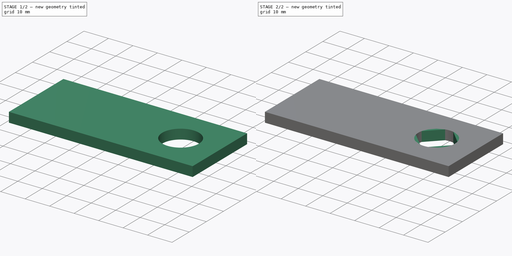
[diagram: build sequence overview — one tinted view per stage of 2, left to right]
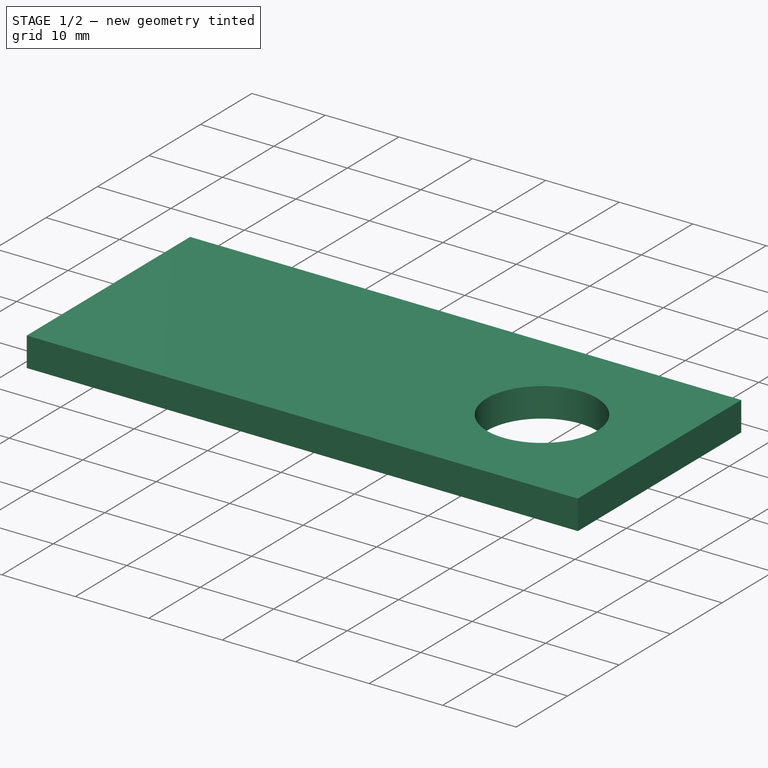
[diagram: stage 1 of 2 — iso view after this stage's code; geometry added in this stage tinted green]
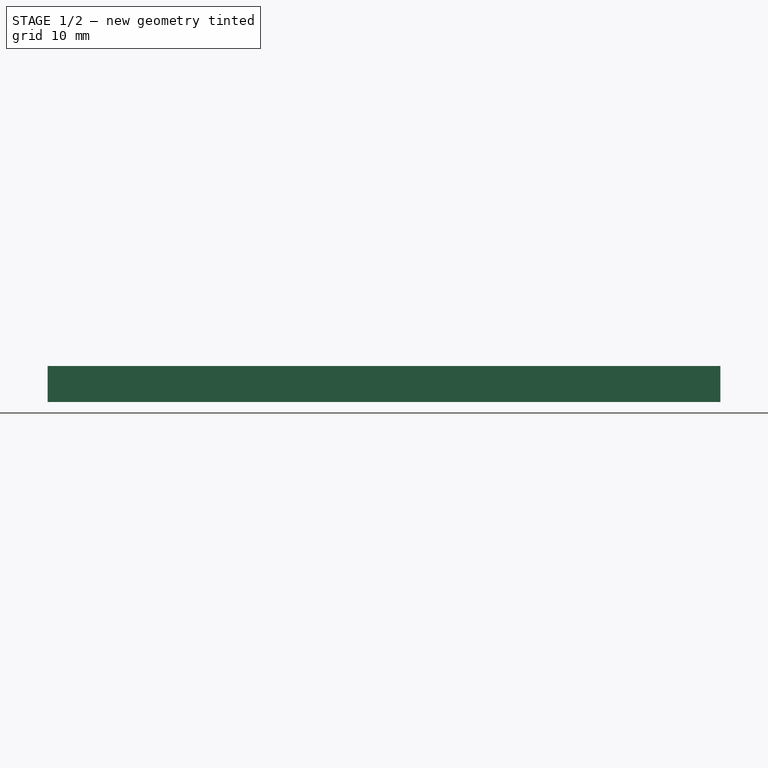
[diagram: stage 1 of 2 — front view after this stage's code; geometry added in this stage tinted green]
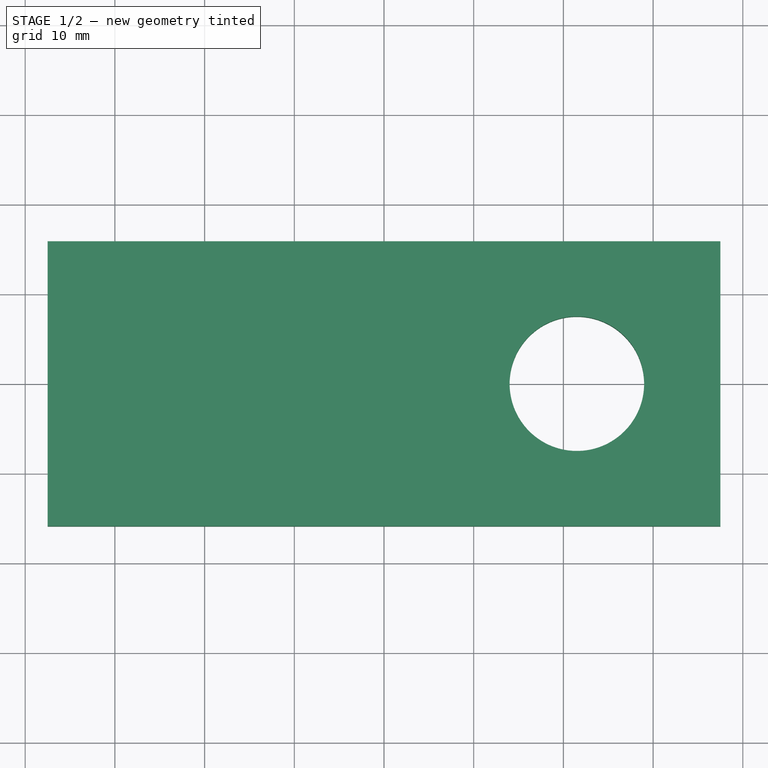
[diagram: stage 1 of 2 — top view after this stage's code; geometry added in this stage tinted green]
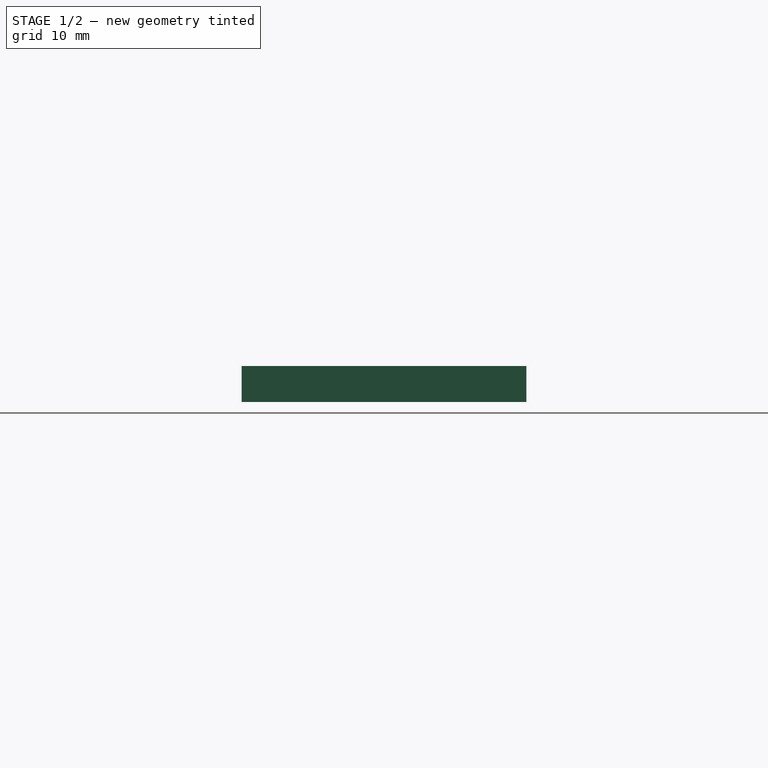
[diagram: stage 1 of 2 — right view after this stage's code; geometry added in this stage tinted green]
FCSTD DOCUMENT  (FreeCAD 0.16R)
Label: Wobble_crank
License: All rights reserved
LicenseURL: http://en.wikipedia.org/wiki/All_rights_reserved
objects: Sketcher::SketchObject×3, PartDesign::Pad×2, PartDesign::Pocket×1
note: 9 computed .brp shape members not serialized (recipe doc carries the construction recipe); baked Part::Feature solids carry a one-line shape summary decoded from their .brp

FEATURE [Sketcher::SketchObject] Sketch
  sketch-geometry (4):
    g0: LineSegment StartX=-37.5 StartY=15.875 StartZ=0 EndX=37.5 EndY=15.875 EndZ=0
    g1: LineSegment StartX=37.5 StartY=15.875 StartZ=0 EndX=37.5 EndY=-15.875 EndZ=0
    g2: LineSegment StartX=37.5 StartY=-15.875 StartZ=0 EndX=-37.5 EndY=-15.875 EndZ=0
    g3: LineSegment StartX=-37.5 StartY=-15.875 StartZ=0 EndX=-37.5 EndY=15.875 EndZ=0
  constraints (11):
    c: Coincident(g0,g1)
    c: Coincident(g1,g2)
    c: Coincident(g2,g3)
    c: Coincident(g3,g0)
    c: Horizontal(g0)
    c: Horizontal(g2)
    c: Vertical(g1)
    c: Vertical(g3)
    c: Distance(g1) = 31.75
    c: Distance(g0) = 75
    c: Symmetric(g0,g2,g-1)
FEATURE [PartDesign::Pad] Pad
  Length = 4
  Length2 = 100
  Sketch = -> Sketch
  Type = 0
FEATURE [Sketcher::SketchObject] Sketch001
  ExternalGeometry = -> [Pad]
  Placement = pos=(0,0,4) rot=(0,0,1;0rad)
  Support = -> Pad [Face6]
  sketch-geometry (1):
    g0: Circle CenterX=21.5 CenterY=0 CenterZ=0 NormalX=0 NormalY=0 NormalZ=1 Radius=7.5
  constraints (3):
    c: PointOnObject(g0,g-1)
    c: Radius(g0) = 7.5
    c: Distance(g0,g-3) = 16
FEATURE [PartDesign::Pocket] Pocket
  Length = 5
  Sketch = -> Sketch001
  Type = 1
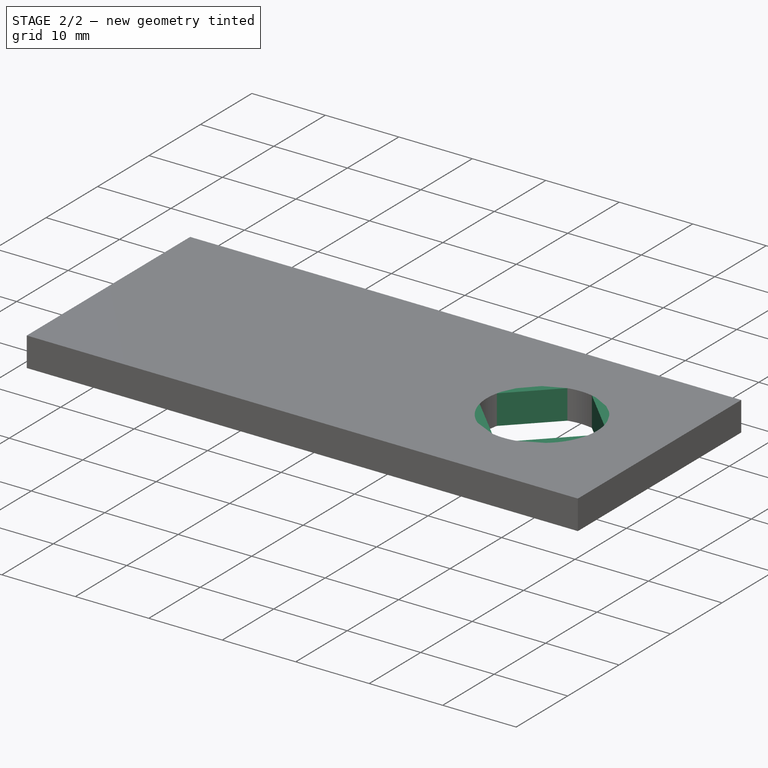
[diagram: stage 2 of 2 — iso view after this stage's code; geometry added in this stage tinted green]
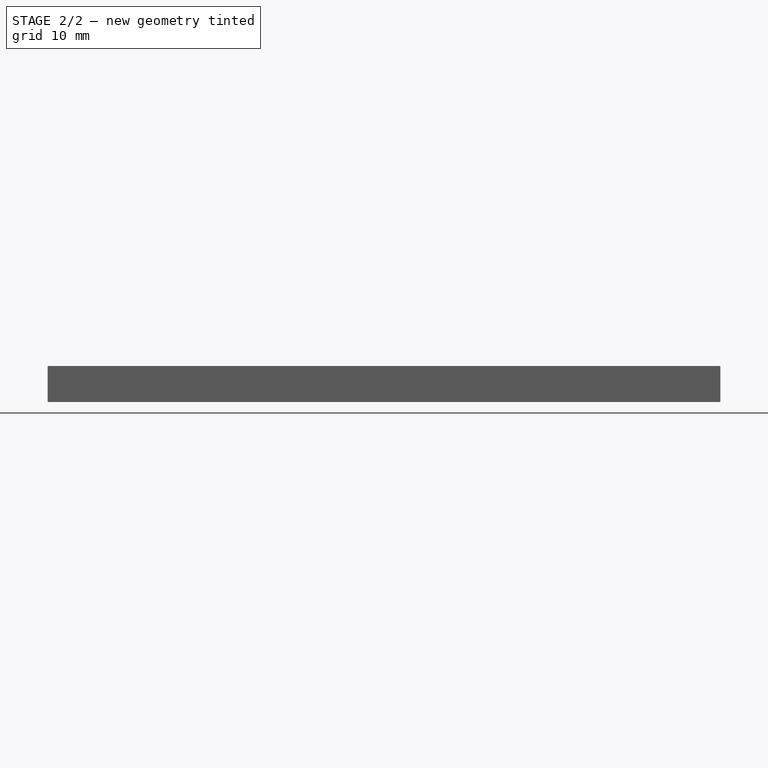
[diagram: stage 2 of 2 — front view after this stage's code; geometry added in this stage tinted green]
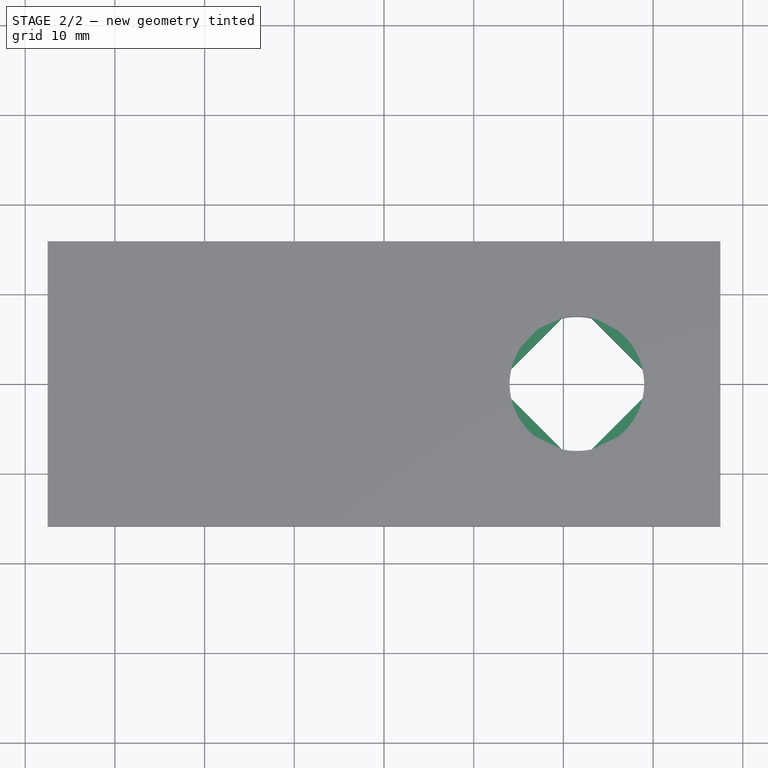
[diagram: stage 2 of 2 — top view after this stage's code; geometry added in this stage tinted green]
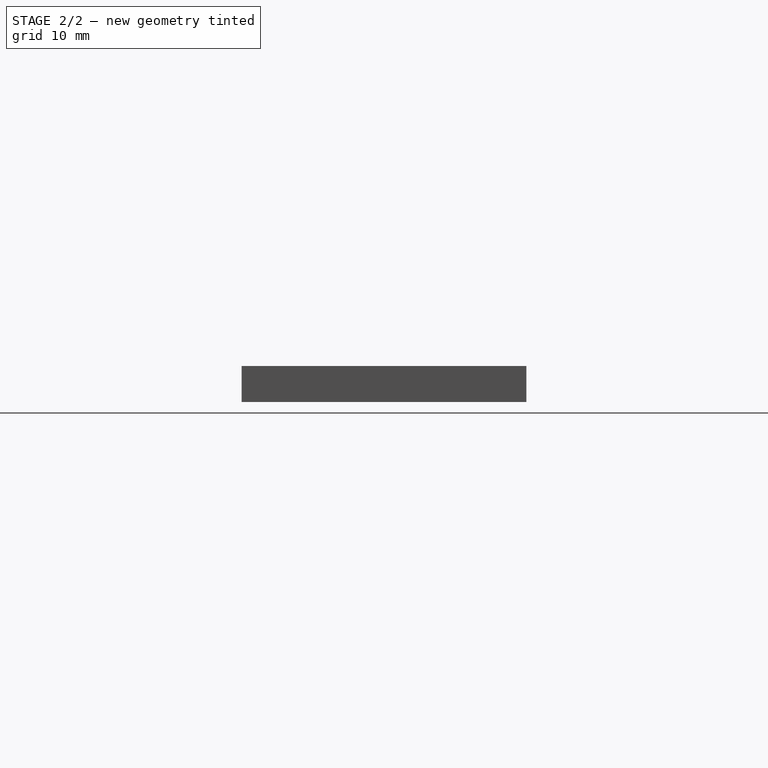
[diagram: stage 2 of 2 — right view after this stage's code; geometry added in this stage tinted green]
FEATURE [Sketcher::SketchObject] Sketch002
  ExternalGeometry = -> [Pocket]
  Placement = pos=(0,0,4) rot=(0,0,1;0rad)
  Support = -> Pocket [Face5]
  sketch-geometry (12):
    g0: LineSegment StartX=24.4865 StartY=11.9668 StartZ=0 EndX=10.3444 EndY=-2.17534 EndZ=0
    g1: LineSegment StartX=10.3444 StartY=-2.17534 StartZ=0 EndX=10.3444 EndY=11.9668 EndZ=0
    g2: LineSegment StartX=10.3444 StartY=11.9668 StartZ=0 EndX=24.4865 EndY=11.9668 EndZ=0
    g3: LineSegment StartX=29.8156 StartY=0.664607 StartZ=0 EndX=21.7079 EndY=8.77239 EndZ=0
    g4: LineSegment StartX=21.7079 StartY=8.77239 StartZ=0 EndX=34.4698 EndY=11.7383 EndZ=0
    g5: LineSegment StartX=34.4698 StartY=11.7383 StartZ=0 EndX=29.8156 EndY=0.664607 EndZ=0
    g6: LineSegment StartX=30.9579 StartY=0.4776 StartZ=0 EndX=22.4028 EndY=-8.07746 EndZ=0
    g7: LineSegment StartX=22.4028 StartY=-8.07746 StartZ=0 EndX=35.7794 EndY=-11.6279 EndZ=0
    g8: LineSegment StartX=35.7794 StartY=-11.6279 StartZ=0 EndX=30.9579 EndY=0.4776 EndZ=0
    g9: LineSegment StartX=13.2538 StartY=-0.734019 StartZ=0 EndX=21.279 EndY=-8.7593 EndZ=0
    g10: LineSegment StartX=21.279 StartY=-8.7593 StartZ=0 EndX=7.24554 EndY=-12.5069 EndZ=0
    g11: LineSegment StartX=7.24554 StartY=-12.5069 StartZ=0 EndX=13.2538 EndY=-0.734019 EndZ=0
  constraints (24):
    c: Coincident(g0,g1)
    c: Coincident(g1,g2)
    c: Coincident(g2,g0)
    c: Horizontal(g2)
    c: Angle(g0) = -2.35619
    c: Distance(g-3,g0) = 6.35
    c: Distance(g0) = 20
    c: DistanceX(g0) = 10.3444
    c: Vertical(g1)
    c: Coincident(g3,g4)
    c: Coincident(g4,g5)
    c: Coincident(g5,g3)
    c: Coincident(g6,g7)
    c: Coincident(g7,g8)
    c: Coincident(g6,g8)
    c: Coincident(g9,g10)
    c: Coincident(g10,g11)
    c: Coincident(g11,g9)
    c: Angle(g3) = 2.35619
    c: Angle(g6) = -2.35619
    c: Angle(g9) = -0.785398
    c: Distance(g-3,g6) = 6.35
    c: Distance(g-3,g3) = 6.35
    c: Distance(g-3,g9) = 6.35
FEATURE [PartDesign::Pad] Pad001
  Length = 4
  Length2 = 100
  Reversed = true
  Sketch = -> Sketch002
  Type = 0
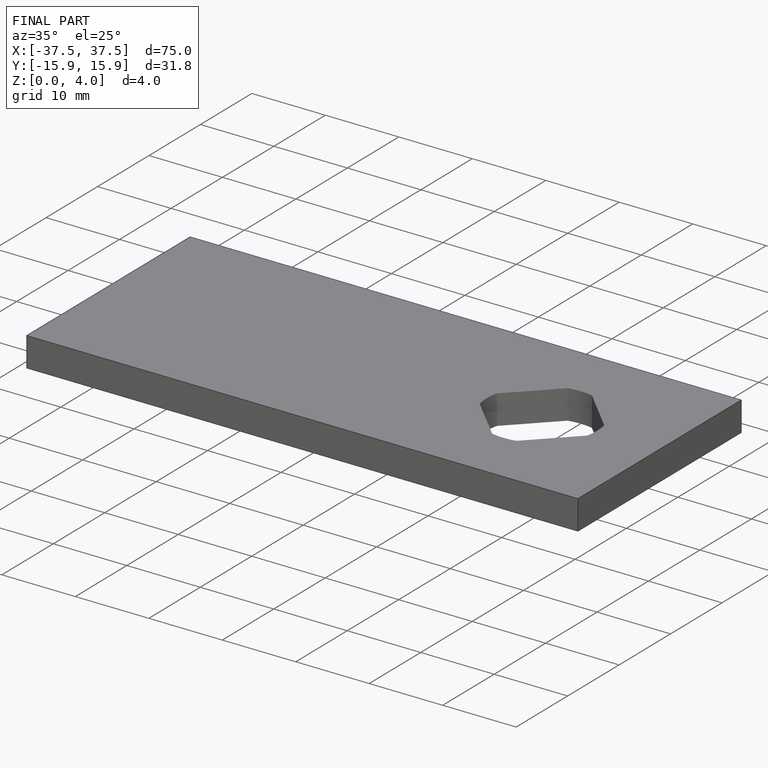
[diagram: finished part — iso view with bounding-box wireframe]
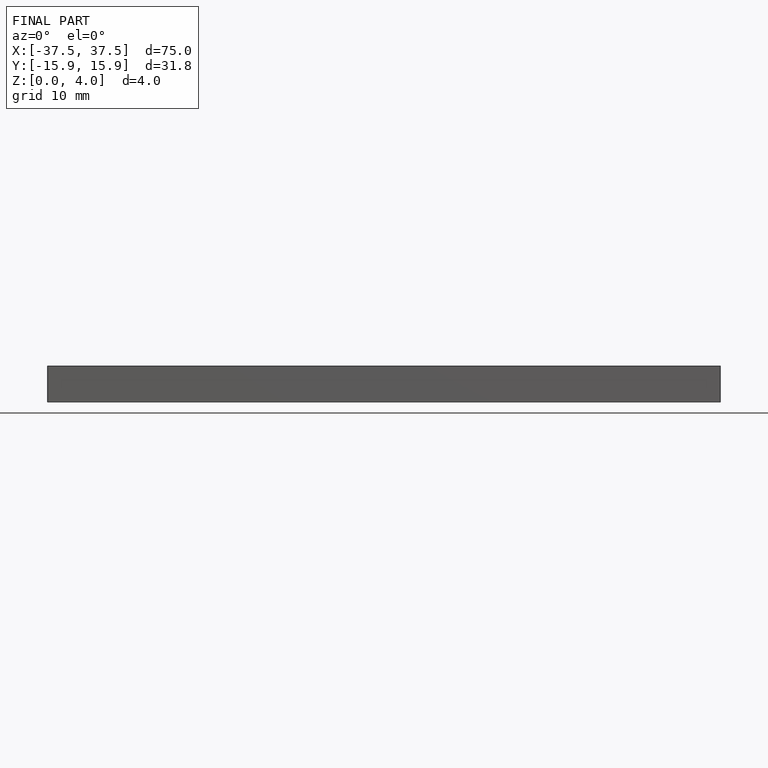
[diagram: finished part — front view with bounding-box wireframe]
